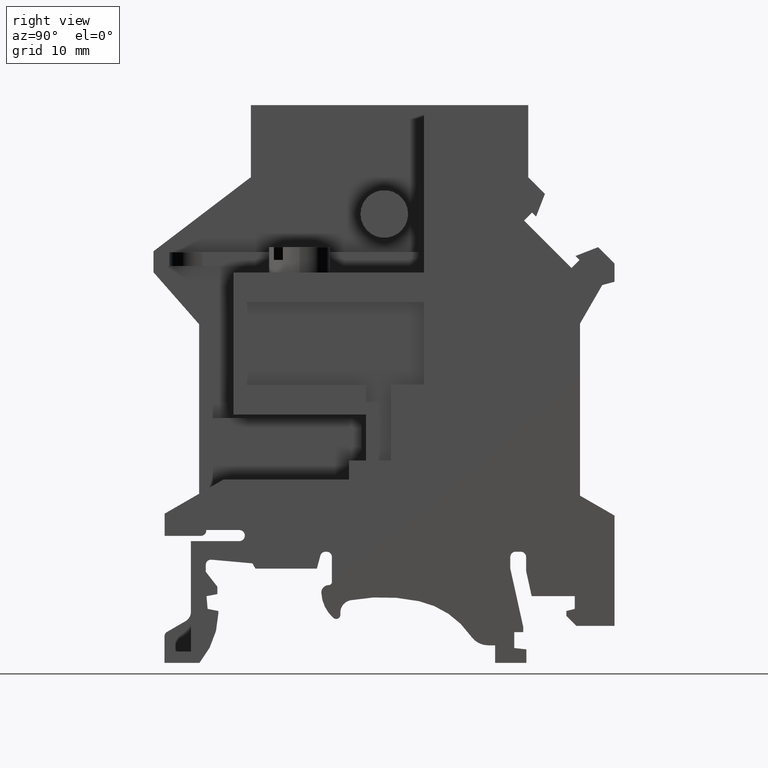
[diagram: clean part render]
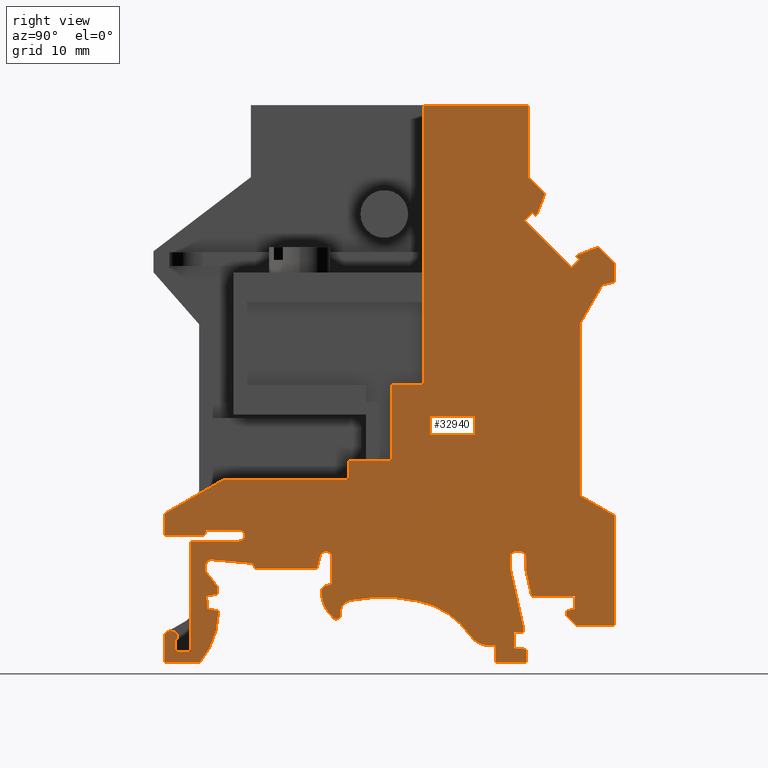
[diagram: same view with one face highlighted and labeled with its STEP entity id]
A machine part, right view. The second image highlights one B-rep face of the part: STEP entity #32940.
In plain terms, the highlighted planar face has unit normal (1, 0, 0).
Its self-contained STEP definition (entity closure, byte-faithful):
#7180=CARTESIAN_POINT('',(0.527572317994471,9.51069200000001,22.15));
#7190=VERTEX_POINT('',#7180);
#7220=CARTESIAN_POINT('',(0.527572317994468,0.,22.15));
#7230=DIRECTION('',(5.46144727131961E-17,1.,0.));
#7240=VECTOR('',#7230,1.);
#7250=LINE('',#7220,#7240);
#7260=CARTESIAN_POINT('',(0.527572317994469,25.7733853041051,22.15));
#7270=VERTEX_POINT('',#7260);
#7280=EDGE_CURVE('',#7190,#7270,#7250,.T.);
#11200=CARTESIAN_POINT('',(-36.2424276820055,-5.23930799999998,22.15));
#11210=VERTEX_POINT('',#11200);
#11430=CARTESIAN_POINT('',(-36.2424276820055,5.21069200000001,22.15));
#11440=VERTEX_POINT('',#11430);
#11470=CARTESIAN_POINT('',(-36.2424276820055,28.7,22.15));
#11480=DIRECTION('',(0.,-1.,0.));
#11490=VECTOR('',#11480,1.);
#11500=LINE('',#11470,#11490);
#11510=EDGE_CURVE('',#11440,#11210,#11500,.T.);
#14330=CARTESIAN_POINT('',(-17.3224276820055,12.810692,22.15));
#14340=VERTEX_POINT('',#14330);
#14370=CARTESIAN_POINT('',(-6.22364864864863,12.810692,22.15));
#14380=DIRECTION('',(-1.,0.,0.));
#14390=VECTOR('',#14380,1.);
#14400=LINE('',#14370,#14390);
#14410=CARTESIAN_POINT('',(-21.3224276820055,12.810692,22.15));
#14420=VERTEX_POINT('',#14410);
#14430=EDGE_CURVE('',#14340,#14420,#14400,.T.);
#14880=CARTESIAN_POINT('',(-31.6674276820055,5.21069200000001,22.15));
#14890=VERTEX_POINT('',#14880);
#14920=CARTESIAN_POINT('',(-6.22364864864863,5.21069200000001,22.15));
#14930=DIRECTION('',(1.,0.,0.));
#14940=VECTOR('',#14930,1.);
#14950=LINE('',#14920,#14940);
#14960=EDGE_CURVE('',#11440,#14890,#14950,.T.);
#15980=CARTESIAN_POINT('',(-31.1480232579208,5.71069199998978,22.15));
#15990=VERTEX_POINT('',#15980);
#16070=CARTESIAN_POINT('',(-31.6724276820055,6.26069200000007,22.15));
#16080=VERTEX_POINT('',#16070);
#16110=CARTESIAN_POINT('',(-31.6724276820055,5.73569200000004,22.15));
#16120=DIRECTION('',(0.,0.,1.));
#16130=DIRECTION('',(1.,0.,0.));
#16140=AXIS2_PLACEMENT_3D('',#16110,#16120,#16130);
#16150=CIRCLE('',#16140,0.52500000000003);
#16160=EDGE_CURVE('',#15990,#16080,#16150,.T.);
#16390=CARTESIAN_POINT('',(-34.790320900819,6.26069200000002,22.15));
#16400=VERTEX_POINT('',#16390);
#16430=CARTESIAN_POINT('',(-6.22364864864863,6.26069200000002,22.15));
#16440=DIRECTION('',(-1.,0.,0.));
#16450=VECTOR('',#16440,1.);
#16460=LINE('',#16430,#16450);
#16470=EDGE_CURVE('',#16080,#16400,#16460,.T.);
#16910=CARTESIAN_POINT('',(-31.6699276820055,5.73306997787962,22.15));
#16920=DIRECTION('',(0.,0.,1.));
#16930=DIRECTION('',(1.,0.,0.));
#16940=AXIS2_PLACEMENT_3D('',#16910,#16920,#16930);
#16950=CIRCLE('',#16940,0.522383960103672);
#16960=EDGE_CURVE('',#14890,#15990,#16950,.T.);
#18310=CARTESIAN_POINT('',(-0.281266516770477,31.0294027742304,22.15));
#18320=VERTEX_POINT('',#18310);
#18350=CARTESIAN_POINT('',(2.04813625745969,28.7,22.15));
#18360=DIRECTION('',(-0.707106781186519,0.707106781186576,0.));
#18370=VECTOR('',#18360,1.);
#18380=LINE('',#18350,#18370);
#18390=CARTESIAN_POINT('',(-4.75371690777516,35.5018531652354,22.15));
#18400=VERTEX_POINT('',#18390);
#18410=EDGE_CURVE('',#18320,#18400,#18380,.T.);
#18690=CARTESIAN_POINT('',(0.475337739099216,31.7860070300999,22.15));
#18700=VERTEX_POINT('',#18690);
#18780=CARTESIAN_POINT('',(0.102057153244655,32.1592876159543,22.15));
#18790=VERTEX_POINT('',#18780);
#18820=CARTESIAN_POINT('',(-6.22364864864863,38.4849934178457,22.15));
#18830=DIRECTION('',(-0.707106781186654,0.707106781186441,0.));
#18840=VECTOR('',#18830,1.);
#18850=LINE('',#18820,#18840);
#18860=EDGE_CURVE('',#18700,#18790,#18850,.T.);
#19080=CARTESIAN_POINT('',(-38.7224276820055,7.81069199999999,22.15));
#19090=VERTEX_POINT('',#19080);
#19120=CARTESIAN_POINT('',(-38.7224276820055,28.7,22.15));
#19130=DIRECTION('',(0.,1.,0.));
#19140=VECTOR('',#19130,1.);
#19150=LINE('',#19120,#19140);
#19160=CARTESIAN_POINT('',(-38.7224276820055,5.71069200000001,22.15));
#19170=VERTEX_POINT('',#19160);
#19180=EDGE_CURVE('',#19170,#19090,#19150,.T.);
#19410=CARTESIAN_POINT('',(-30.5724276820055,46.410692,22.15));
#19420=DIRECTION('',(1.,0.,0.));
#19430=VECTOR('',#19420,1.);
#19440=LINE('',#19410,#19430);
#19450=CARTESIAN_POINT('',(-14.2224276820055,46.410692,22.15));
#19460=VERTEX_POINT('',#19450);
#19470=CARTESIAN_POINT('',(-4.37242768200557,46.410692,22.15));
#19480=VERTEX_POINT('',#19470);
#19490=EDGE_CURVE('',#19460,#19480,#19440,.T.);
#20210=CARTESIAN_POINT('',(-33.1798650977851,11.010692,22.15));
#20220=VERTEX_POINT('',#20210);
#20250=CARTESIAN_POINT('',(-6.22364864864863,26.5738708232428,22.15));
#20260=DIRECTION('',(-0.866025403784438,-0.500000000000001,0.));
#20270=VECTOR('',#20260,1.);
#20280=LINE('',#20250,#20270);
#20290=EDGE_CURVE('',#20220,#19090,#20280,.T.);
#21030=CARTESIAN_POINT('',(3.77757231799447,-2.78930799999999,22.15));
#21040=VERTEX_POINT('',#21030);
#21120=CARTESIAN_POINT('',(0.182572317994292,-2.78930799999999,22.15));
#21130=VERTEX_POINT('',#21120);
#21160=CARTESIAN_POINT('',(-6.22364864864863,-2.78930799999999,22.15));
#21170=DIRECTION('',(1.,0.,0.));
#21180=VECTOR('',#21170,1.);
#21190=LINE('',#21160,#21180);
#21200=EDGE_CURVE('',#21130,#21040,#21190,.T.);
#21410=CARTESIAN_POINT('',(-6.06742768200544,3.71069200000001,22.15));
#21420=VERTEX_POINT('',#21410);
#21500=CARTESIAN_POINT('',(-6.06742768200544,2.63630991698612,22.15));
#21510=VERTEX_POINT('',#21500);
#21540=CARTESIAN_POINT('',(-6.06742768200544,28.7,22.15));
#21550=DIRECTION('',(0.,-1.,0.));
#21560=VECTOR('',#21550,1.);
#21570=LINE('',#21540,#21560);
#21580=EDGE_CURVE('',#21420,#21510,#21570,.T.);
#21750=CARTESIAN_POINT('',(-6.22364864864863,-3.28930799999999,22.15));
#21760=DIRECTION('',(-1.,0.,0.));
#21770=VECTOR('',#21760,1.);
#21780=LINE('',#21750,#21770);
#21790=CARTESIAN_POINT('',(-37.9924276820055,-3.28930799999999,22.15));
#21800=VERTEX_POINT('',#21790);
#21810=CARTESIAN_POINT('',(-38.2424276820055,-3.28930799999999,22.15));
#21820=VERTEX_POINT('',#21810);
#21830=EDGE_CURVE('',#21800,#21820,#21780,.T.);
#22170=CARTESIAN_POINT('',(-37.6924276820054,-4.18930799999994,22.15));
#22180=VERTEX_POINT('',#22170);
#22210=CARTESIAN_POINT('',(-37.9924276820055,-3.78930799999999,22.15));
#22220=DIRECTION('',(0.,0.,1.));
#22230=DIRECTION('',(1.,0.,0.));
#22240=AXIS2_PLACEMENT_3D('',#22210,#22220,#22230);
#22250=CIRCLE('',#22240,0.5);
#22260=EDGE_CURVE('',#22180,#21800,#22250,.T.);
#22510=CARTESIAN_POINT('',(-21.3224276820055,11.010692,22.15));
#22520=VERTEX_POINT('',#22510);
#22550=CARTESIAN_POINT('',(-6.22364864864863,11.010692,22.15));
#22560=DIRECTION('',(1.,0.,0.));
#22570=VECTOR('',#22560,1.);
#22580=LINE('',#22550,#22570);
#22590=EDGE_CURVE('',#20220,#22520,#22580,.T.);
#22770=CARTESIAN_POINT('',(-21.3224276820055,28.7,22.15));
#22780=DIRECTION('',(0.,1.,0.));
#22790=VECTOR('',#22780,1.);
#22800=LINE('',#22770,#22790);
#22810=EDGE_CURVE('',#22520,#14420,#22800,.T.);
#23040=CARTESIAN_POINT('',(-34.790320900819,6.21069200000001,22.15));
#23050=VERTEX_POINT('',#23040);
#23130=CARTESIAN_POINT('',(-35.290320900819,5.71069200000001,22.15));
#23140=VERTEX_POINT('',#23130);
#23170=CARTESIAN_POINT('',(-35.290320900819,6.21069200000001,22.15));
#23180=DIRECTION('',(0.,0.,1.));
#23190=DIRECTION('',(1.,0.,0.));
#23200=AXIS2_PLACEMENT_3D('',#23170,#23180,#23190);
#23210=CIRCLE('',#23200,0.5);
#23220=EDGE_CURVE('',#23140,#23050,#23210,.T.);
#23420=CARTESIAN_POINT('',(-34.790320900819,28.7,22.15));
#23430=DIRECTION('',(0.,-1.,0.));
#23440=VECTOR('',#23430,1.);
#23450=LINE('',#23420,#23440);
#23460=EDGE_CURVE('',#16400,#23050,#23450,.T.);
#23630=CARTESIAN_POINT('',(-11.5555700730106,28.7,22.15));
#23640=DIRECTION('',(-0.707106781186548,-0.707106781186548,0.));
#23650=VECTOR('',#23640,1.);
#23660=LINE('',#23630,#23650);
#23670=CARTESIAN_POINT('',(-3.99711265190567,36.2584574211049,22.15));
#23680=VERTEX_POINT('',#23670);
#23690=EDGE_CURVE('',#23680,#18400,#23660,.T.);
#23980=CARTESIAN_POINT('',(-7.49242768200551,-6.28930799999999,22.15));
#23990=VERTEX_POINT('',#23980);
#24070=CARTESIAN_POINT('',(-7.49242768200551,-4.63930800000007,22.15));
#24080=VERTEX_POINT('',#24070);
#24110=CARTESIAN_POINT('',(-7.49242768200551,28.7,22.15));
#24120=DIRECTION('',(0.,1.,0.));
#24130=VECTOR('',#24120,1.);
#24140=LINE('',#24110,#24130);
#24150=EDGE_CURVE('',#23990,#24080,#24140,.T.);
#24320=CARTESIAN_POINT('',(-14.2224276820055,46.410692,22.15));
#24330=DIRECTION('',(0.,-1.,0.));
#24340=VECTOR('',#24330,1.);
#24350=LINE('',#24320,#24340);
#24360=CARTESIAN_POINT('',(-14.2224276820055,30.5932434217325,22.15));
#24370=VERTEX_POINT('',#24360);
#24380=EDGE_CURVE('',#19460,#24370,#24350,.T.);
#24740=CARTESIAN_POINT('',(-4.37242768200557,46.410692,22.15));
#24750=DIRECTION('',(0.,-1.,0.));
#24760=VECTOR('',#24750,1.);
#24770=LINE('',#24740,#24760);
#24780=CARTESIAN_POINT('',(-4.37242768200557,39.610692,22.15));
#24790=VERTEX_POINT('',#24780);
#24800=EDGE_CURVE('',#19480,#24790,#24770,.T.);
#25110=CARTESIAN_POINT('',(-37.6924276820054,-5.23930799999998,22.15));
#25120=VERTEX_POINT('',#25110);
#25150=CARTESIAN_POINT('',(-37.6924276820054,28.7,22.15));
#25160=DIRECTION('',(0.,1.,0.));
#25170=VECTOR('',#25160,1.);
#25180=LINE('',#25150,#25170);
#25190=EDGE_CURVE('',#25120,#22180,#25180,.T.);
#25390=CARTESIAN_POINT('',(-6.22364864864863,-5.23930799999998,22.15));
#25400=DIRECTION('',(-1.,0.,0.));
#25410=VECTOR('',#25400,1.);
#25420=LINE('',#25390,#25410);
#25430=EDGE_CURVE('',#11210,#25120,#25420,.T.);
#25640=CARTESIAN_POINT('',(3.77757231799447,29.7188335712959,22.15));
#25650=VERTEX_POINT('',#25640);
#25730=CARTESIAN_POINT('',(2.62757231799463,29.410692,22.15));
#25740=VERTEX_POINT('',#25730);
#25770=CARTESIAN_POINT('',(-6.22364864864863,27.0390144899579,22.15));
#25780=DIRECTION('',(-0.96592582628905,-0.25881904510259,0.));
#25790=VECTOR('',#25780,1.);
#25800=LINE('',#25770,#25790);
#25810=EDGE_CURVE('',#25650,#25740,#25800,.T.);
#25980=CARTESIAN_POINT('',(2.21725410048369,28.7,22.15));
#25990=DIRECTION('',(0.499999999999998,0.86602540378444,0.));
#26000=VECTOR('',#25990,1.);
#26010=LINE('',#25980,#26000);
#26020=EDGE_CURVE('',#7270,#25740,#26010,.T.);
#26710=CARTESIAN_POINT('',(3.77757231799447,31.4606919999999,22.15));
#26720=VERTEX_POINT('',#26710);
#26770=CARTESIAN_POINT('',(3.77757231799447,28.7,22.15));
#26780=DIRECTION('',(0.,-1.,0.));
#26790=VECTOR('',#26780,1.);
#26800=LINE('',#26770,#26790);
#26810=EDGE_CURVE('',#26720,#25650,#26800,.T.);
#27020=CARTESIAN_POINT('',(2.24462806522066,32.9936362527741,22.15));
#27030=VERTEX_POINT('',#27020);
#27080=CARTESIAN_POINT('',(6.53826431799365,28.7,22.15));
#27090=DIRECTION('',(0.707106781186461,-0.707106781186634,0.));
#27100=VECTOR('',#27090,1.);
#27110=LINE('',#27080,#27100);
#27120=EDGE_CURVE('',#27030,#26720,#27110,.T.);
#27320=CARTESIAN_POINT('',(-6.22364864864863,29.6959647064388,22.15));
#27330=DIRECTION('',(-0.931839057156059,-0.362871839026545,0.));
#27340=VECTOR('',#27330,1.);
#27350=LINE('',#27320,#27340);
#27360=EDGE_CURVE('',#27030,#18790,#27350,.T.);
#27920=CARTESIAN_POINT('',(-6.22364864864863,5.71069200000001,22.15));
#27930=DIRECTION('',(-1.,0.,0.));
#27940=VECTOR('',#27930,1.);
#27950=LINE('',#27920,#27940);
#27960=EDGE_CURVE('',#23140,#19170,#27950,.T.);
#28100=CARTESIAN_POINT('',(-6.22364864864863,28.7,22.15));
#28110=DIRECTION('',(0.,0.,1.));
#28120=DIRECTION('',(1.,0.,0.));
#28130=AXIS2_PLACEMENT_3D('',#28100,#28110,#28120);
#28140=PLANE('',#28130);
#28150=ORIENTED_EDGE('',*,*,#7280,.T.);
#28160=CARTESIAN_POINT('',(-6.22364864864863,13.4085112424494,22.15));
#28170=DIRECTION('',(0.866025403784477,-0.499999999999933,0.));
#28180=VECTOR('',#28170,1.);
#28190=LINE('',#28160,#28180);
#28200=CARTESIAN_POINT('',(3.77757231799447,7.63430362513406,22.15));
#28210=VERTEX_POINT('',#28200);
#28220=EDGE_CURVE('',#7190,#28210,#28190,.T.);
#28230=ORIENTED_EDGE('',*,*,#28220,.F.);
#28240=CARTESIAN_POINT('',(3.77757231799447,28.7,22.15));
#28250=DIRECTION('',(0.,-1.,0.));
#28260=VECTOR('',#28250,1.);
#28270=LINE('',#28240,#28260);
#28280=EDGE_CURVE('',#28210,#21040,#28270,.T.);
#28290=ORIENTED_EDGE('',*,*,#28280,.F.);
#28300=ORIENTED_EDGE('',*,*,#21200,.T.);
#28310=CARTESIAN_POINT('',(-31.3067356819969,28.7,22.15));
#28320=DIRECTION('',(-0.707106781186449,0.707106781186646,0.));
#28330=VECTOR('',#28320,1.);
#28340=LINE('',#28310,#28330);
#28350=CARTESIAN_POINT('',(-0.767427682005426,-1.83930800000001,22.15));
#28360=VERTEX_POINT('',#28350);
#28370=EDGE_CURVE('',#21130,#28360,#28340,.T.);
#28380=ORIENTED_EDGE('',*,*,#28370,.F.);
#28390=CARTESIAN_POINT('',(-0.767427682005433,28.7,22.15));
#28400=DIRECTION('',(0.,1.,0.));
#28410=VECTOR('',#28400,1.);
#28420=LINE('',#28390,#28410);
#28430=CARTESIAN_POINT('',(-0.767427682005432,-1.38930800000007,22.15));
#28440=VERTEX_POINT('',#28430);
#28450=EDGE_CURVE('',#28360,#28440,#28420,.T.);
#28460=ORIENTED_EDGE('',*,*,#28450,.F.);
#28470=CARTESIAN_POINT('',(-6.22364864864863,-2.75336324166087,22.15));
#28480=DIRECTION('',(0.970142500145332,0.242535625036333,0.));
#28490=VECTOR('',#28480,1.);
#28500=LINE('',#28470,#28490);
#28510=CARTESIAN_POINT('',(0.0325723179945205,-1.18930800000008,22.15));
#28520=VERTEX_POINT('',#28510);
#28530=EDGE_CURVE('',#28440,#28520,#28500,.T.);
#28540=ORIENTED_EDGE('',*,*,#28530,.F.);
#28550=CARTESIAN_POINT('',(0.0325723179945214,28.7,22.15));
#28560=DIRECTION('',(0.,1.,0.));
#28570=VECTOR('',#28560,1.);
#28580=LINE('',#28550,#28570);
#28590=CARTESIAN_POINT('',(0.0325723179945214,0.0106919999999064,22.15))
;
#28600=VERTEX_POINT('',#28590);
#28610=EDGE_CURVE('',#28520,#28600,#28580,.T.);
#28620=ORIENTED_EDGE('',*,*,#28610,.F.);
#28630=CARTESIAN_POINT('',(-6.22364864864863,0.0106919999999064,22.15));
#28640=DIRECTION('',(-1.,0.,0.));
#28650=VECTOR('',#28640,1.);
#28660=LINE('',#28630,#28650);
#28670=CARTESIAN_POINT('',(-4.04242768200535,0.0106919999999064,22.15));
#28680=VERTEX_POINT('',#28670);
#28690=EDGE_CURVE('',#28600,#28680,#28660,.T.);
#28700=ORIENTED_EDGE('',*,*,#28690,.F.);
#28710=CARTESIAN_POINT('',(-10.4026941405255,28.7,22.15));
#28720=DIRECTION('',(-0.216439613938128,0.976296007119928,0.));
#28730=VECTOR('',#28720,1.);
#28740=LINE('',#28710,#28730);
#28750=CARTESIAN_POINT('',(-4.56742768200533,2.37881396442211,22.15));
#28760=VERTEX_POINT('',#28750);
#28770=EDGE_CURVE('',#28680,#28760,#28740,.T.);
#28780=ORIENTED_EDGE('',*,*,#28770,.F.);
#28790=CARTESIAN_POINT('',(-4.56742768200533,28.7,22.15));
#28800=DIRECTION('',(0.,1.,0.));
#28810=VECTOR('',#28800,1.);
#28820=LINE('',#28790,#28810);
#28830=CARTESIAN_POINT('',(-4.56742768200533,3.71069200000001,22.15));
#28840=VERTEX_POINT('',#28830);
#28850=EDGE_CURVE('',#28760,#28840,#28820,.T.);
#28860=ORIENTED_EDGE('',*,*,#28850,.F.);
#28870=CARTESIAN_POINT('',(-5.06742768200533,3.71069200000001,22.15));
#28880=DIRECTION('',(0.,0.,1.));
#28890=DIRECTION('',(1.,0.,0.));
#28900=AXIS2_PLACEMENT_3D('',#28870,#28880,#28890);
#28910=CIRCLE('',#28900,0.5);
#28920=CARTESIAN_POINT('',(-5.06742768200533,4.21069200000001,22.15));
#28930=VERTEX_POINT('',#28920);
#28940=EDGE_CURVE('',#28840,#28930,#28910,.T.);
#28950=ORIENTED_EDGE('',*,*,#28940,.F.);
#28960=CARTESIAN_POINT('',(-6.22364864864863,4.21069199999995,22.15));
#28970=DIRECTION('',(-1.,0.,0.));
#28980=VECTOR('',#28970,1.);
#28990=LINE('',#28960,#28980);
#29000=CARTESIAN_POINT('',(-5.56742768200544,4.21069199999995,22.15));
#29010=VERTEX_POINT('',#29000);
#29020=EDGE_CURVE('',#28930,#29010,#28990,.T.);
#29030=ORIENTED_EDGE('',*,*,#29020,.F.);
#29040=CARTESIAN_POINT('',(-5.56742768200544,3.71069200000001,22.15));
#29050=DIRECTION('',(0.,0.,1.));
#29060=DIRECTION('',(1.,0.,0.));
#29070=AXIS2_PLACEMENT_3D('',#29040,#29050,#29060);
#29080=CIRCLE('',#29070,0.499999999999915);
#29090=EDGE_CURVE('',#29010,#21420,#29080,.T.);
#29100=ORIENTED_EDGE('',*,*,#29090,.F.);
#29110=ORIENTED_EDGE('',*,*,#21580,.F.);
#29120=CARTESIAN_POINT('',(-11.845608662189,28.7,22.15));
#29130=DIRECTION('',(0.216439613938091,-0.976296007119936,0.));
#29140=VECTOR('',#29130,1.);
#29150=LINE('',#29120,#29140);
#29160=CARTESIAN_POINT('',(-4.84242768200548,-2.88930800000007,22.15));
#29170=VERTEX_POINT('',#29160);
#29180=EDGE_CURVE('',#21510,#29170,#29150,.T.);
#29190=ORIENTED_EDGE('',*,*,#29180,.F.);
#29200=CARTESIAN_POINT('',(-4.84242768200548,28.7,22.15));
#29210=DIRECTION('',(0.,-1.,0.));
#29220=VECTOR('',#29210,1.);
#29230=LINE('',#29200,#29220);
#29240=CARTESIAN_POINT('',(-4.84242768200548,-3.38930800000007,22.15));
#29250=VERTEX_POINT('',#29240);
#29260=EDGE_CURVE('',#29170,#29250,#29230,.T.);
#29270=ORIENTED_EDGE('',*,*,#29260,.F.);
#29280=CARTESIAN_POINT('',(-6.22364864864863,-3.38930800000007,22.15));
#29290=DIRECTION('',(-1.,0.,0.));
#29300=VECTOR('',#29290,1.);
#29310=LINE('',#29280,#29300);
#29320=CARTESIAN_POINT('',(-5.69242768200544,-3.38930800000007,22.15));
#29330=VERTEX_POINT('',#29320);
#29340=EDGE_CURVE('',#29250,#29330,#29310,.T.);
#29350=ORIENTED_EDGE('',*,*,#29340,.F.);
#29360=CARTESIAN_POINT('',(-5.69242768200544,28.7,22.15));
#29370=DIRECTION('',(0.,-1.,0.));
#29380=VECTOR('',#29370,1.);
#29390=LINE('',#29360,#29380);
#29400=CARTESIAN_POINT('',(-5.69242768200544,-4.88930800000008,22.15));
#29410=VERTEX_POINT('',#29400);
#29420=EDGE_CURVE('',#29330,#29410,#29390,.T.);
#29430=ORIENTED_EDGE('',*,*,#29420,.F.);
#29440=CARTESIAN_POINT('',(-6.22364864864863,-4.83156659058234,22.15));
#29450=DIRECTION('',(0.994144463069456,-0.108059180768421,0.));
#29460=VECTOR('',#29450,1.);
#29470=LINE('',#29440,#29460);
#29480=CARTESIAN_POINT('',(-4.54242768200547,-5.01430800000008,22.15));
#29490=VERTEX_POINT('',#29480);
#29500=EDGE_CURVE('',#29410,#29490,#29470,.T.);
#29510=ORIENTED_EDGE('',*,*,#29500,.F.);
#29520=CARTESIAN_POINT('',(-4.54242768200547,28.7,22.15));
#29530=DIRECTION('',(0.,-1.,0.));
#29540=VECTOR('',#29530,1.);
#29550=LINE('',#29520,#29540);
#29560=CARTESIAN_POINT('',(-4.54242768200547,-6.28930799999999,22.15));
#29570=VERTEX_POINT('',#29560);
#29580=EDGE_CURVE('',#29490,#29570,#29550,.T.);
#29590=ORIENTED_EDGE('',*,*,#29580,.F.);
#29600=CARTESIAN_POINT('',(-6.22364864864863,-6.28930799999999,22.15));
#29610=DIRECTION('',(-1.,0.,0.));
#29620=VECTOR('',#29610,1.);
#29630=LINE('',#29600,#29620);
#29640=EDGE_CURVE('',#29570,#23990,#29630,.T.);
#29650=ORIENTED_EDGE('',*,*,#29640,.F.);
#29660=ORIENTED_EDGE('',*,*,#24150,.F.);
#29670=CARTESIAN_POINT('',(-6.22364864864863,-4.63930800000007,22.15));
#29680=DIRECTION('',(-1.,0.,0.));
#29690=VECTOR('',#29680,1.);
#29700=LINE('',#29670,#29690);
#29710=CARTESIAN_POINT('',(-8.1324276820055,-4.63930800000007,22.15));
#29720=VERTEX_POINT('',#29710);
#29730=EDGE_CURVE('',#24080,#29720,#29700,.T.);
#29740=ORIENTED_EDGE('',*,*,#29730,.F.);
#29750=CARTESIAN_POINT('',(-8.1324276820055,-2.63930800000007,22.15));
#29760=DIRECTION('',(0.,0.,1.));
#29770=DIRECTION('',(1.,0.,0.));
#29780=AXIS2_PLACEMENT_3D('',#29750,#29760,#29770);
#29790=CIRCLE('',#29780,1.99999999999998);
#29800=CARTESIAN_POINT('',(-9.78407259860712,-3.7671683944922,22.15));
#29810=VERTEX_POINT('',#29800);
#29820=EDGE_CURVE('',#29810,#29720,#29790,.T.);
#29830=ORIENTED_EDGE('',*,*,#29820,.T.);
#29840=CARTESIAN_POINT('',(-16.3906522650137,-8.27860997246067,22.15));
#29850=DIRECTION('',(0.,0.,1.));
#29860=DIRECTION('',(1.,0.,0.));
#29870=AXIS2_PLACEMENT_3D('',#29840,#29850,#29860);
#29880=CIRCLE('',#29870,7.99999999999997);
#29890=CARTESIAN_POINT('',(-14.6816030777047,-0.463294823641782,22.15));
#29900=VERTEX_POINT('',#29890);
#29910=EDGE_CURVE('',#29810,#29900,#29880,.T.);
#29920=ORIENTED_EDGE('',*,*,#29910,.F.);
#29930=CARTESIAN_POINT('',(-18.1424276820054,-16.289308,22.15));
#29940=DIRECTION('',(0.,0.,1.));
#29950=DIRECTION('',(1.,0.,0.));
#29960=AXIS2_PLACEMENT_3D('',#29930,#29940,#29950);
#29970=CIRCLE('',#29960,16.2000000000001);
#29980=CARTESIAN_POINT('',(-21.1520290885188,-0.371321337927654,22.15));
#29990=VERTEX_POINT('',#29980);
#30000=EDGE_CURVE('',#29900,#29990,#29970,.T.);
#30010=ORIENTED_EDGE('',*,*,#30000,.F.);
#30020=CARTESIAN_POINT('',(-20.9290956509993,-1.55043146104417,22.15));
#30030=DIRECTION('',(0.,0.,1.));
#30040=DIRECTION('',(1.,0.,0.));
#30050=AXIS2_PLACEMENT_3D('',#30020,#30030,#30040);
#30060=CIRCLE('',#30050,1.20000000000004);
#30070=CARTESIAN_POINT('',(-22.1203446742539,-1.69508886526107,22.15));
#30080=VERTEX_POINT('',#30070);
#30090=EDGE_CURVE('',#29990,#30080,#30060,.T.);
#30100=ORIENTED_EDGE('',*,*,#30090,.F.);
#30110=CARTESIAN_POINT('',(-22.5174276820055,-1.743308,22.15));
#30120=DIRECTION('',(0.,0.,1.));
#30130=DIRECTION('',(1.,0.,0.));
#30140=AXIS2_PLACEMENT_3D('',#30110,#30120,#30130);
#30150=CIRCLE('',#30140,0.399999999999995);
#30160=CARTESIAN_POINT('',(-22.7815153124995,-2.04373723196659,22.15));
#30170=VERTEX_POINT('',#30160);
#30180=EDGE_CURVE('',#30170,#30080,#30150,.T.);
#30190=ORIENTED_EDGE('',*,*,#30180,.T.);
#30200=CARTESIAN_POINT('',(-20.5697814071119,0.472357585753528,22.15));
#30210=DIRECTION('',(0.,0.,1.));
#30220=DIRECTION('',(1.,0.,0.));
#30230=AXIS2_PLACEMENT_3D('',#30200,#30210,#30220);
#30240=CIRCLE('',#30230,3.34999999999994);
#30250=CARTESIAN_POINT('',(-23.9168059432981,0.331195430178202,22.15));
#30260=VERTEX_POINT('',#30250);
#30270=EDGE_CURVE('',#30260,#30170,#30240,.T.);
#30280=ORIENTED_EDGE('',*,*,#30270,.T.);
#30290=CARTESIAN_POINT('',(-23.2174276820054,0.360691999999929,22.15));
#30300=DIRECTION('',(0.,0.,1.));
#30310=DIRECTION('',(1.,0.,0.));
#30320=AXIS2_PLACEMENT_3D('',#30290,#30300,#30310);
#30330=CIRCLE('',#30320,0.699999999999989);
#30340=CARTESIAN_POINT('',(-23.2174276820054,1.06069199999992,22.15));
#30350=VERTEX_POINT('',#30340);
#30360=EDGE_CURVE('',#30350,#30260,#30330,.T.);
#30370=ORIENTED_EDGE('',*,*,#30360,.T.);
#30380=CARTESIAN_POINT('',(-23.2174276820054,1.36069199999993,22.15));
#30390=DIRECTION('',(0.,0.,1.));
#30400=DIRECTION('',(1.,0.,0.));
#30410=AXIS2_PLACEMENT_3D('',#30380,#30390,#30400);
#30420=CIRCLE('',#30410,0.300000000000011);
#30430=CARTESIAN_POINT('',(-22.9174276820054,1.36069199999993,22.15));
#30440=VERTEX_POINT('',#30430);
#30450=EDGE_CURVE('',#30350,#30440,#30420,.T.);
#30460=ORIENTED_EDGE('',*,*,#30450,.F.);
#30470=CARTESIAN_POINT('',(-22.9174276820055,28.7,22.15));
#30480=DIRECTION('',(0.,1.,0.));
#30490=VECTOR('',#30480,1.);
#30500=LINE('',#30470,#30490);
#30510=CARTESIAN_POINT('',(-22.9174276820055,3.71069200000001,22.15));
#30520=VERTEX_POINT('',#30510);
#30530=EDGE_CURVE('',#30440,#30520,#30500,.T.);
#30540=ORIENTED_EDGE('',*,*,#30530,.F.);
#30550=CARTESIAN_POINT('',(-23.4174276820055,3.71069200000001,22.15));
#30560=DIRECTION('',(0.,0.,1.));
#30570=DIRECTION('',(1.,0.,0.));
#30580=AXIS2_PLACEMENT_3D('',#30550,#30560,#30570);
#30590=CIRCLE('',#30580,0.5);
#30600=CARTESIAN_POINT('',(-23.4174276820055,4.21069200000001,22.15));
#30610=VERTEX_POINT('',#30600);
#30620=EDGE_CURVE('',#30520,#30610,#30590,.T.);
#30630=ORIENTED_EDGE('',*,*,#30620,.F.);
#30640=CARTESIAN_POINT('',(-6.22364864864863,4.21069199999995,22.15));
#30650=DIRECTION('',(-1.,0.,0.));
#30660=VECTOR('',#30650,1.);
#30670=LINE('',#30640,#30660);
#30680=CARTESIAN_POINT('',(-23.5300454801262,4.21069199999992,22.15));
#30690=VERTEX_POINT('',#30680);
#30700=EDGE_CURVE('',#30610,#30690,#30670,.T.);
#30710=ORIENTED_EDGE('',*,*,#30700,.F.);
#30720=CARTESIAN_POINT('',(-23.5300454801262,3.71069200000001,22.15));
#30730=DIRECTION('',(0.,0.,1.));
#30740=DIRECTION('',(1.,0.,0.));
#30750=AXIS2_PLACEMENT_3D('',#30720,#30730,#30740);
#30760=CIRCLE('',#30750,0.499999999999915);
#30770=CARTESIAN_POINT('',(-24.0130083932707,3.84010152255122,22.15));
#30780=VERTEX_POINT('',#30770);
#30790=EDGE_CURVE('',#30690,#30780,#30760,.T.);
#30800=ORIENTED_EDGE('',*,*,#30790,.F.);
#30810=CARTESIAN_POINT('',(-17.3518186723197,28.7,22.15));
#30820=DIRECTION('',(-0.258819045102482,-0.965925826289079,0.));
#30830=VECTOR('',#30820,1.);
#30840=LINE('',#30810,#30830);
#30850=CARTESIAN_POINT('',(-24.3424276820054,2.61069199999993,22.15));
#30860=VERTEX_POINT('',#30850);
#30870=EDGE_CURVE('',#30780,#30860,#30840,.T.);
#30880=ORIENTED_EDGE('',*,*,#30870,.F.);
#30890=CARTESIAN_POINT('',(-6.22364864864863,2.61069199999993,22.15));
#30900=DIRECTION('',(1.,0.,0.));
#30910=VECTOR('',#30900,1.);
#30920=LINE('',#30890,#30910);
#30930=CARTESIAN_POINT('',(-30.1424276820054,2.61069199999993,22.15));
#30940=VERTEX_POINT('',#30930);
#30950=EDGE_CURVE('',#30940,#30860,#30920,.T.);
#30960=ORIENTED_EDGE('',*,*,#30950,.T.);
#30970=CARTESIAN_POINT('',(-45.20509667878,28.7,22.15));
#30980=DIRECTION('',(-0.500000000000089,0.866025403784387,0.));
#30990=VECTOR('',#30980,1.);
#31000=LINE('',#30970,#30990);
#31010=CARTESIAN_POINT('',(-30.4311028166004,3.11069200000012,22.15));
#31020=VERTEX_POINT('',#31010);
#31030=EDGE_CURVE('',#30940,#31020,#31000,.T.);
#31040=ORIENTED_EDGE('',*,*,#31030,.F.);
#31050=CARTESIAN_POINT('',(-6.22364864864863,0.930588533002165,22.15));
#31060=DIRECTION('',(-0.995969175038445,0.0896961669930173,0.));
#31070=VECTOR('',#31060,1.);
#31080=LINE('',#31050,#31070);
#31090=CARTESIAN_POINT('',(-34.3028813377805,3.45938119791867,22.15));
#31100=VERTEX_POINT('',#31090);
#31110=EDGE_CURVE('',#31020,#31100,#31080,.T.);
#31120=ORIENTED_EDGE('',*,*,#31110,.F.);
#31130=CARTESIAN_POINT('',(-34.3424276820056,2.96094756476539,22.15));
#31140=DIRECTION('',(0.,0.,1.));
#31150=DIRECTION('',(1.,0.,0.));
#31160=AXIS2_PLACEMENT_3D('',#31130,#31140,#31150);
#31170=CIRCLE('',#31160,0.499999999999955);
#31180=CARTESIAN_POINT('',(-34.8424276820054,2.96094756476528,22.15));
#31190=VERTEX_POINT('',#31180);
#31200=EDGE_CURVE('',#31100,#31190,#31170,.T.);
#31210=ORIENTED_EDGE('',*,*,#31200,.F.);
#31220=CARTESIAN_POINT('',(-34.8424276820054,28.7,22.15));
#31230=DIRECTION('',(0.,-1.,0.));
#31240=VECTOR('',#31230,1.);
#31250=LINE('',#31220,#31240);
#31260=CARTESIAN_POINT('',(-34.8424276820054,2.3186277954123,22.15));
#31270=VERTEX_POINT('',#31260);
#31280=EDGE_CURVE('',#31190,#31270,#31250,.T.);
#31290=ORIENTED_EDGE('',*,*,#31280,.F.);
#31300=CARTESIAN_POINT('',(-55.4538145929732,28.7,22.15));
#31310=DIRECTION('',(0.61566147532565,-0.788010753606728,0.));
#31320=VECTOR('',#31310,1.);
#31330=LINE('',#31300,#31320);
#31340=CARTESIAN_POINT('',(-33.7424276820055,0.910691999999997,22.15));
#31350=VERTEX_POINT('',#31340);
#31360=EDGE_CURVE('',#31270,#31350,#31330,.T.);
#31370=ORIENTED_EDGE('',*,*,#31360,.F.);
#31380=CARTESIAN_POINT('',(-33.7424276820055,28.7,22.15));
#31390=DIRECTION('',(0.,-1.,0.));
#31400=VECTOR('',#31390,1.);
#31410=LINE('',#31380,#31400);
#31420=CARTESIAN_POINT('',(-33.7424276820055,0.211103902106213,22.15));
#31430=VERTEX_POINT('',#31420);
#31440=EDGE_CURVE('',#31350,#31430,#31410,.T.);
#31450=ORIENTED_EDGE('',*,*,#31440,.F.);
#31460=CARTESIAN_POINT('',(-6.22364864864863,5.5916803408559,22.15));
#31470=DIRECTION('',(-0.981416387151379,-0.191890268202259,0.));
#31480=VECTOR('',#31470,1.);
#31490=LINE('',#31460,#31480);
#31500=CARTESIAN_POINT('',(-34.7674276820055,0.0106919999999029,22.15));
#31510=VERTEX_POINT('',#31500);
#31520=EDGE_CURVE('',#31430,#31510,#31490,.T.);
#31530=ORIENTED_EDGE('',*,*,#31520,.F.);
#31540=CARTESIAN_POINT('',(-37.1582033486727,28.7,22.15));
#31550=DIRECTION('',(0.0830454798537595,-0.996545758244878,0.));
#31560=VECTOR('',#31550,1.);
#31570=LINE('',#31540,#31560);
#31580=CARTESIAN_POINT('',(-34.6674276820055,-1.18930800000008,22.15));
#31590=VERTEX_POINT('',#31580);
#31600=EDGE_CURVE('',#31510,#31590,#31570,.T.);
#31610=ORIENTED_EDGE('',*,*,#31600,.F.);
#31620=CARTESIAN_POINT('',(-6.22364864864863,-6.73931366504512,22.15));
#31630=DIRECTION('',(-0.9814905920257,0.191510359419642,0.));
#31640=VECTOR('',#31630,1.);
#31650=LINE('',#31620,#31640);
#31660=CARTESIAN_POINT('',(-33.6424276820055,-1.38930800000007,22.15));
#31670=VERTEX_POINT('',#31660);
#31680=EDGE_CURVE('',#31670,#31590,#31650,.T.);
#31690=ORIENTED_EDGE('',*,*,#31680,.T.);
#31700=CARTESIAN_POINT('',(-33.6424276820055,28.7,22.15));
#31710=DIRECTION('',(0.,-1.,0.));
#31720=VECTOR('',#31710,1.);
#31730=LINE('',#31700,#31720);
#31740=CARTESIAN_POINT('',(-33.6424276820055,-1.58930800000014,22.15));
#31750=VERTEX_POINT('',#31740);
#31760=EDGE_CURVE('',#31670,#31750,#31730,.T.);
#31770=ORIENTED_EDGE('',*,*,#31760,.F.);
#31780=CARTESIAN_POINT('',(-41.1068086866056,-1.4318206411953,22.15));
#31790=DIRECTION('',(0.,0.,1.));
#31800=DIRECTION('',(1.,0.,0.));
#31810=AXIS2_PLACEMENT_3D('',#31780,#31790,#31800);
#31820=CIRCLE('',#31810,7.46604219449759);
#31830=CARTESIAN_POINT('',(-35.4370112820178,-6.28930799999999,22.15));
#31840=VERTEX_POINT('',#31830);
#31850=EDGE_CURVE('',#31840,#31750,#31820,.T.);
#31860=ORIENTED_EDGE('',*,*,#31850,.T.);
#31870=CARTESIAN_POINT('',(-6.22364864864863,-6.28930799999999,22.15));
#31880=DIRECTION('',(-1.,0.,0.));
#31890=VECTOR('',#31880,1.);
#31900=LINE('',#31870,#31890);
#31910=CARTESIAN_POINT('',(-38.7424276820055,-6.28930799999999,22.15));
#31920=VERTEX_POINT('',#31910);
#31930=EDGE_CURVE('',#31840,#31920,#31900,.T.);
#31940=ORIENTED_EDGE('',*,*,#31930,.F.);
#31950=CARTESIAN_POINT('',(-38.7424276820055,28.7,22.15));
#31960=DIRECTION('',(0.,-1.,0.));
#31970=VECTOR('',#31960,1.);
#31980=LINE('',#31950,#31970);
#31990=CARTESIAN_POINT('',(-38.7424276820055,-3.78930799999999,22.15));
#32000=VERTEX_POINT('',#31990);
#32010=EDGE_CURVE('',#32000,#31920,#31980,.T.);
#32020=ORIENTED_EDGE('',*,*,#32010,.T.);
#32030=CARTESIAN_POINT('',(-38.2424276820055,-3.78930799999999,22.15));
#32040=DIRECTION('',(0.,0.,1.));
#32050=DIRECTION('',(1.,0.,0.));
#32060=AXIS2_PLACEMENT_3D('',#32030,#32040,#32050);
#32070=CIRCLE('',#32060,0.5);
#32080=EDGE_CURVE('',#21820,#32000,#32070,.T.);
#32090=ORIENTED_EDGE('',*,*,#32080,.T.);
#32100=ORIENTED_EDGE('',*,*,#21830,.T.);
#32110=ORIENTED_EDGE('',*,*,#22260,.T.);
#32120=ORIENTED_EDGE('',*,*,#25190,.T.);
#32130=ORIENTED_EDGE('',*,*,#25430,.T.);
#32140=ORIENTED_EDGE('',*,*,#11510,.T.);
#32150=ORIENTED_EDGE('',*,*,#14960,.F.);
#32160=ORIENTED_EDGE('',*,*,#16960,.F.);
#32170=ORIENTED_EDGE('',*,*,#16160,.F.);
#32180=ORIENTED_EDGE('',*,*,#16470,.F.);
#32190=ORIENTED_EDGE('',*,*,#23460,.F.);
#32200=ORIENTED_EDGE('',*,*,#23220,.T.);
#32210=ORIENTED_EDGE('',*,*,#27960,.F.);
#32220=ORIENTED_EDGE('',*,*,#19180,.F.);
#32230=ORIENTED_EDGE('',*,*,#20290,.T.);
#32240=ORIENTED_EDGE('',*,*,#22590,.F.);
#32250=ORIENTED_EDGE('',*,*,#22810,.F.);
#32260=ORIENTED_EDGE('',*,*,#14430,.T.);
#32270=CARTESIAN_POINT('',(-17.3224276820055,12.010692,22.15));
#32280=DIRECTION('',(0.,1.,0.));
#32290=VECTOR('',#32280,1.);
#32300=LINE('',#32270,#32290);
#32310=CARTESIAN_POINT('',(-17.3224276820055,20.010692,22.15));
#32320=VERTEX_POINT('',#32310);
#32330=EDGE_CURVE('',#14340,#32320,#32300,.T.);
#32340=ORIENTED_EDGE('',*,*,#32330,.F.);
#32350=CARTESIAN_POINT('',(-17.3224276820055,20.010692,22.15));
#32360=DIRECTION('',(1.,0.,0.));
#32370=VECTOR('',#32360,1.);
#32380=LINE('',#32350,#32370);
#32390=CARTESIAN_POINT('',(-14.2224276820055,20.010692,22.15));
#32400=VERTEX_POINT('',#32390);
#32410=EDGE_CURVE('',#32320,#32400,#32380,.T.);
#32420=ORIENTED_EDGE('',*,*,#32410,.F.);
#32430=CARTESIAN_POINT('',(-14.2224276820055,27.810692,22.15));
#32440=VERTEX_POINT('',#32430);
#32450=EDGE_CURVE('',#32440,#32400,#24350,.T.);
#32460=ORIENTED_EDGE('',*,*,#32450,.T.);
#32470=CARTESIAN_POINT('',(-14.2224276820055,28.7,22.15));
#32480=DIRECTION('',(0.,-1.,0.));
#32490=VECTOR('',#32480,1.);
#32500=LINE('',#32470,#32490);
#32510=EDGE_CURVE('',#24370,#32440,#32500,.T.);
#32520=ORIENTED_EDGE('',*,*,#32510,.T.);
#32530=ORIENTED_EDGE('',*,*,#24380,.T.);
#32540=ORIENTED_EDGE('',*,*,#19490,.F.);
#32550=ORIENTED_EDGE('',*,*,#24800,.F.);
#32560=CARTESIAN_POINT('',(6.53826431799448,28.7,22.15));
#32570=DIRECTION('',(0.707106781186548,-0.707106781186548,0.));
#32580=VECTOR('',#32570,1.);
#32590=LINE('',#32560,#32580);
#32600=CARTESIAN_POINT('',(-2.78948342923152,38.027747747226,22.15));
#32610=VERTEX_POINT('',#32600);
#32620=EDGE_CURVE('',#24790,#32610,#32590,.T.);
#32630=ORIENTED_EDGE('',*,*,#32620,.F.);
#32640=CARTESIAN_POINT('',(-6.42184564137406,28.7,22.15));
#32650=DIRECTION('',(-0.362871839026601,-0.931839057156037,0.));
#32660=VECTOR('',#32650,1.);
#32670=LINE('',#32640,#32660);
#32680=CARTESIAN_POINT('',(-3.62383206605123,35.8851768352503,22.15));
#32690=VERTEX_POINT('',#32680);
#32700=EDGE_CURVE('',#32610,#32690,#32670,.T.);
#32710=ORIENTED_EDGE('',*,*,#32700,.F.);
#32720=CARTESIAN_POINT('',(3.56134476919695,28.7,22.15));
#32730=DIRECTION('',(-0.707106781186441,0.707106781186654,0.));
#32740=VECTOR('',#32730,1.);
#32750=LINE('',#32720,#32740);
#32760=EDGE_CURVE('',#32690,#23680,#32750,.T.);
#32770=ORIENTED_EDGE('',*,*,#32760,.F.);
#32780=ORIENTED_EDGE('',*,*,#23690,.F.);
#32790=ORIENTED_EDGE('',*,*,#18410,.T.);
#32800=CARTESIAN_POINT('',(-6.22364864864863,25.0870206423534,22.15));
#32810=DIRECTION('',(0.70710678118662,0.707106781186476,0.));
#32820=VECTOR('',#32810,1.);
#32830=LINE('',#32800,#32820);
#32840=EDGE_CURVE('',#18320,#18700,#32830,.T.);
#32850=ORIENTED_EDGE('',*,*,#32840,.F.);
#32860=ORIENTED_EDGE('',*,*,#18860,.F.);
#32870=ORIENTED_EDGE('',*,*,#27360,.T.);
#32880=ORIENTED_EDGE('',*,*,#27120,.F.);
#32890=ORIENTED_EDGE('',*,*,#26810,.F.);
#32900=ORIENTED_EDGE('',*,*,#25810,.F.);
#32910=ORIENTED_EDGE('',*,*,#26020,.T.);
#32920=EDGE_LOOP('',(#32910,#32900,#32890,#32880,#32870,#32860,#32850,
#32790,#32780,#32770,#32710,#32630,#32550,#32540,#32530,#32520,#32460,
#32420,#32340,#32260,#32250,#32240,#32230,#32220,#32210,#32200,#32190,
#32180,#32170,#32160,#32150,#32140,#32130,#32120,#32110,#32100,#32090,
#32020,#31940,#31860,#31770,#31690,#31610,#31530,#31450,#31370,#31290,
#31210,#31120,#31040,#30960,#30880,#30800,#30710,#30630,#30540,#30460,
#30370,#30280,#30190,#30100,#30010,#29920,#29830,#29740,#29660,#29650,
#29590,#29510,#29430,#29350,#29270,#29190,#29110,#29100,#29030,#28950,
#28860,#28780,#28700,#28620,#28540,#28460,#28380,#28300,#28290,#28230,
#28150));
#32930=FACE_OUTER_BOUND('',#32920,.T.);
#32940=ADVANCED_FACE('',(#32930),#28140,.T.);